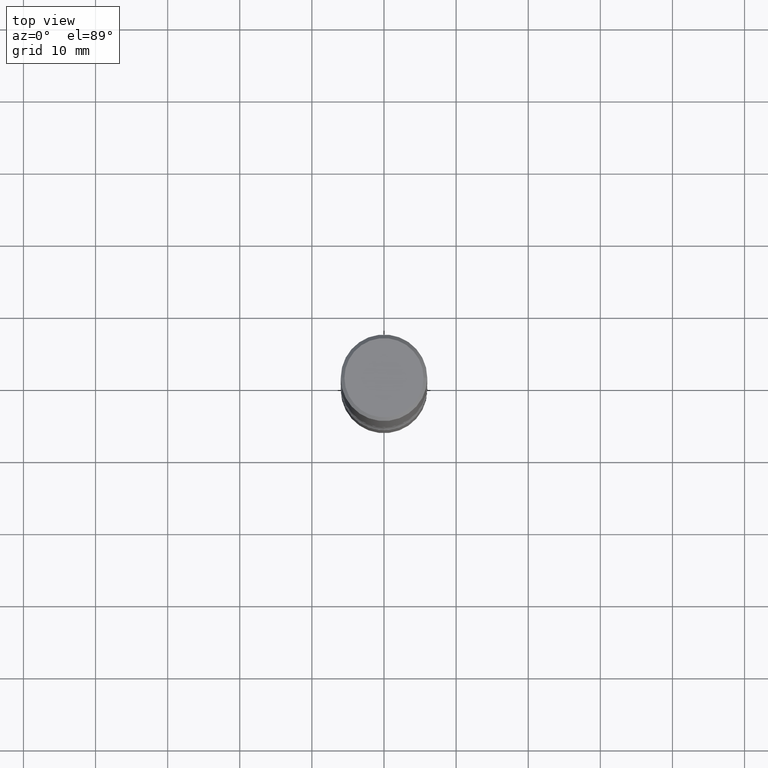
[diagram: clean part render]
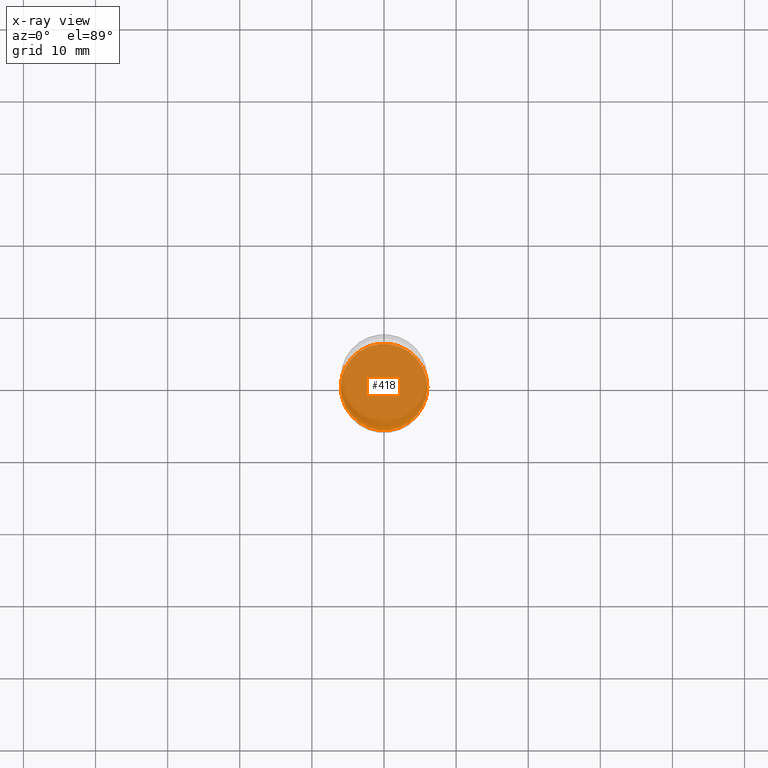
[diagram: x-ray — body ghosted, one internal face saturated and labeled with its STEP entity id]
A machine part, top view, then the same camera in x-ray: the body is ghosted and one INTERNAL B-rep face — a face not visible from any outside direction — is saturated and labeled: STEP entity #418.
In plain terms, the highlighted planar face has unit normal (0, -0, -1).
Its self-contained STEP definition (entity closure, byte-faithful):
#23 = DIRECTION ( 'NONE',  ( -2.445468806185136597E-29, 3.491481338843145583E-15, 1.000000000000000000 ) ) ;
#30 = ORIENTED_EDGE ( 'NONE', *, *, #340, .T. ) ;
#41 = DIRECTION ( 'NONE',  ( 1.000000000000000000, -6.982962677686269077E-15, 0.000000000000000000 ) ) ;
#55 = CIRCLE ( 'NONE', #371, 0.2362000000000001321 ) ;
#63 = DIRECTION ( 'NONE',  ( -1.000000000000000000, 6.982962677686265922E-15, -4.876176775795935793E-29 ) ) ;
#98 = EDGE_CURVE ( 'NONE', #327, #544, #55, .T. ) ;
#116 = CARTESIAN_POINT ( 'NONE',  ( 7.124628819939777829E-29, -1.017208173258562247E-14, -2.913400000000000212 ) ) ;
#144 = PLANE ( 'NONE',  #261 ) ;
#222 = ORIENTED_EDGE ( 'NONE', *, *, #98, .T. ) ;
#261 = AXIS2_PLACEMENT_3D ( 'NONE', #319, #356, #63 ) ;
#274 = FACE_OUTER_BOUND ( 'NONE', #392, .T. ) ;
#319 = CARTESIAN_POINT ( 'NONE',  ( 7.124628819939777829E-29, -1.017208173258562247E-14, -2.913400000000000212 ) ) ;
#327 = VERTEX_POINT ( 'NONE', #348 ) ;
#340 = EDGE_CURVE ( 'NONE', #544, #327, #542, .T. ) ;
#345 = AXIS2_PLACEMENT_3D ( 'NONE', #387, #23, #502 ) ;
#348 = CARTESIAN_POINT ( 'NONE',  ( 0.2362000000000001321, -1.182145751705511899E-14, -2.913400000000000212 ) ) ;
#356 = DIRECTION ( 'NONE',  ( 2.438088387897960049E-29, -3.491481338843145188E-15, -1.000000000000000000 ) ) ;
#371 = AXIS2_PLACEMENT_3D ( 'NONE', #116, #517, #41 ) ;
#387 = CARTESIAN_POINT ( 'NONE',  ( 7.124628819939777829E-29, -1.017208173258562247E-14, -2.913400000000000212 ) ) ;
#392 = EDGE_LOOP ( 'NONE', ( #222, #30 ) ) ;
#417 = CARTESIAN_POINT ( 'NONE',  ( -0.2362000000000001321, -1.007454796688149554E-14, -2.913400000000000212 ) ) ;
#418 = ADVANCED_FACE ( 'NONE', ( #274 ), #144, .F. ) ;
#502 = DIRECTION ( 'NONE',  ( 1.000000000000000000, -6.982962677686269077E-15, 0.000000000000000000 ) ) ;
#517 = DIRECTION ( 'NONE',  ( -2.445468806185136597E-29, 3.491481338843145583E-15, 1.000000000000000000 ) ) ;
#542 = CIRCLE ( 'NONE', #345, 0.2362000000000001321 ) ;
#544 = VERTEX_POINT ( 'NONE', #417 ) ;